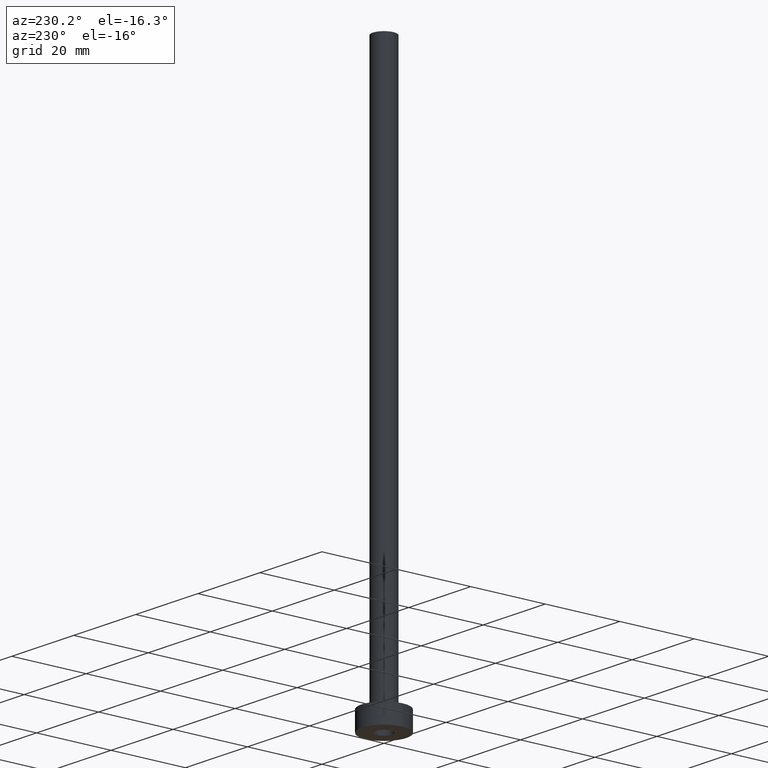
[diagram: clean part render]
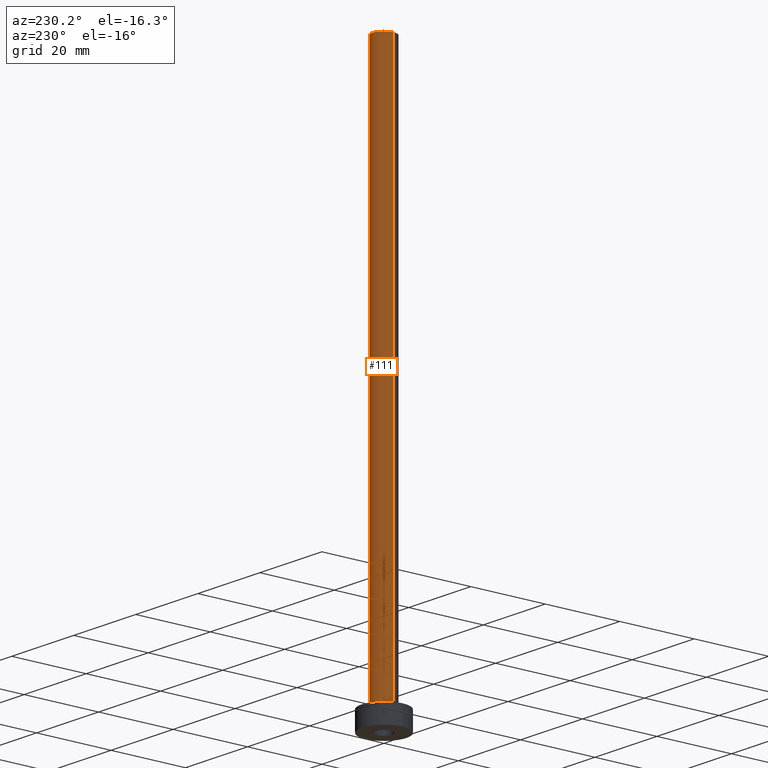
[diagram: same view with one face highlighted and labeled with its STEP entity id]
A machine part, auxiliary view. The second image highlights one B-rep face of the part: STEP entity #111.
In plain terms, the highlighted cylindrical surface (edge-blend (fillet) strip) has radius 3 mm, axis along (-0, -0, -1).
Its self-contained STEP definition (entity closure, byte-faithful):
#16 = DIRECTION ( 'NONE',  ( 0.000000000000000000, 0.000000000000000000, 1.000000000000000000 ) ) ;
#32 = AXIS2_PLACEMENT_3D ( 'NONE', #246, #147, #182 ) ;
#51 = ORIENTED_EDGE ( 'NONE', *, *, #329, .T. ) ;
#65 = CARTESIAN_POINT ( 'NONE',  ( -3.000000000000000444, 0.000000000000000000, 150.0000000000000000 ) ) ;
#77 = VECTOR ( 'NONE', #265, 1000.000000000000000 ) ;
#85 = VECTOR ( 'NONE', #203, 1000.000000000000000 ) ;
#111 = ADVANCED_FACE ( 'NONE', ( #322 ), #386, .T. ) ;
#122 = CARTESIAN_POINT ( 'NONE',  ( 3.000000000000000444, 3.673940397442060361E-16, 150.0000000000000000 ) ) ;
#123 = VERTEX_POINT ( 'NONE', #295 ) ;
#125 = VERTEX_POINT ( 'NONE', #283 ) ;
#135 = LINE ( 'NONE', #65, #85 ) ;
#141 = CIRCLE ( 'NONE', #32, 3.000000000000000444 ) ;
#147 = DIRECTION ( 'NONE',  ( 0.000000000000000000, 0.000000000000000000, 1.000000000000000000 ) ) ;
#175 = EDGE_CURVE ( 'NONE', #285, #125, #135, .T. ) ;
#182 = DIRECTION ( 'NONE',  ( 1.000000000000000000, 0.000000000000000000, 0.000000000000000000 ) ) ;
#195 = EDGE_LOOP ( 'NONE', ( #348, #51, #339, #279 ) ) ;
#203 = DIRECTION ( 'NONE',  ( -0.000000000000000000, -0.000000000000000000, -1.000000000000000000 ) ) ;
#209 = VERTEX_POINT ( 'NONE', #248 ) ;
#213 = DIRECTION ( 'NONE',  ( -0.000000000000000000, -0.000000000000000000, -1.000000000000000000 ) ) ;
#219 = AXIS2_PLACEMENT_3D ( 'NONE', #422, #213, #356 ) ;
#223 = EDGE_CURVE ( 'NONE', #123, #125, #141, .T. ) ;
#246 = CARTESIAN_POINT ( 'NONE',  ( 0.000000000000000000, 0.000000000000000000, 5.500000000000005329 ) ) ;
#248 = CARTESIAN_POINT ( 'NONE',  ( 3.000000000000000444, 3.673940397442060361E-16, 150.0000000000000000 ) ) ;
#263 = EDGE_CURVE ( 'NONE', #209, #285, #302, .T. ) ;
#265 = DIRECTION ( 'NONE',  ( -0.000000000000000000, -0.000000000000000000, -1.000000000000000000 ) ) ;
#272 = AXIS2_PLACEMENT_3D ( 'NONE', #330, #16, #303 ) ;
#279 = ORIENTED_EDGE ( 'NONE', *, *, #175, .F. ) ;
#283 = CARTESIAN_POINT ( 'NONE',  ( -3.000000000000000444, 0.000000000000000000, 5.500000000000005329 ) ) ;
#285 = VERTEX_POINT ( 'NONE', #428 ) ;
#295 = CARTESIAN_POINT ( 'NONE',  ( 3.000000000000000444, 3.673940397442060361E-16, 5.500000000000005329 ) ) ;
#302 = CIRCLE ( 'NONE', #272, 3.000000000000000444 ) ;
#303 = DIRECTION ( 'NONE',  ( 1.000000000000000000, 0.000000000000000000, 0.000000000000000000 ) ) ;
#322 = FACE_OUTER_BOUND ( 'NONE', #195, .T. ) ;
#329 = EDGE_CURVE ( 'NONE', #209, #123, #436, .T. ) ;
#330 = CARTESIAN_POINT ( 'NONE',  ( 0.000000000000000000, 0.000000000000000000, 150.0000000000000000 ) ) ;
#339 = ORIENTED_EDGE ( 'NONE', *, *, #223, .T. ) ;
#348 = ORIENTED_EDGE ( 'NONE', *, *, #263, .F. ) ;
#356 = DIRECTION ( 'NONE',  ( -1.000000000000000000, 0.000000000000000000, 0.000000000000000000 ) ) ;
#386 = CYLINDRICAL_SURFACE ( 'NONE', #219, 3.000000000000000444 ) ;
#422 = CARTESIAN_POINT ( 'NONE',  ( 0.000000000000000000, 0.000000000000000000, 150.0000000000000000 ) ) ;
#428 = CARTESIAN_POINT ( 'NONE',  ( -3.000000000000000444, 0.000000000000000000, 150.0000000000000000 ) ) ;
#436 = LINE ( 'NONE', #122, #77 ) ;